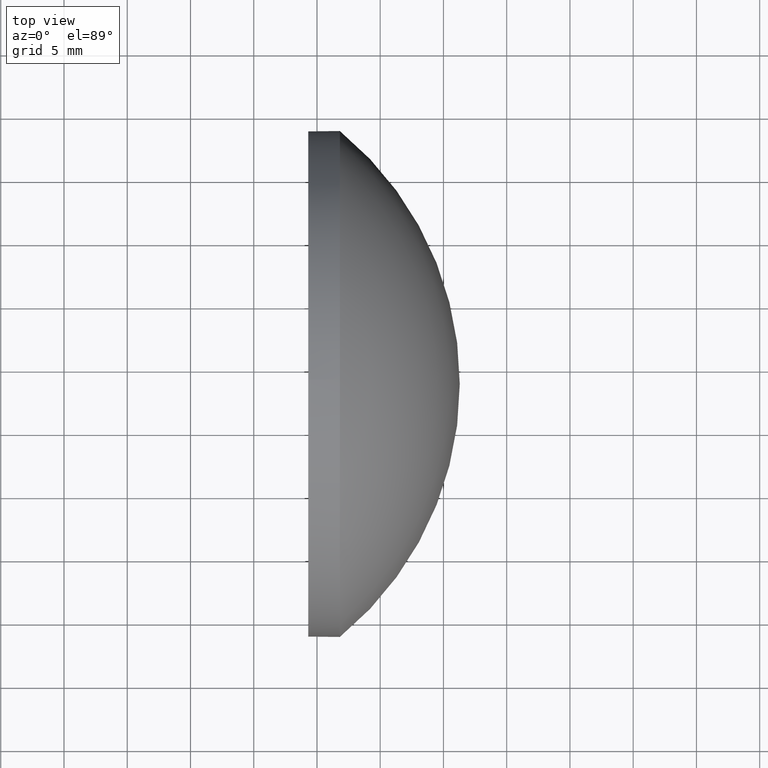
[diagram: clean part render]
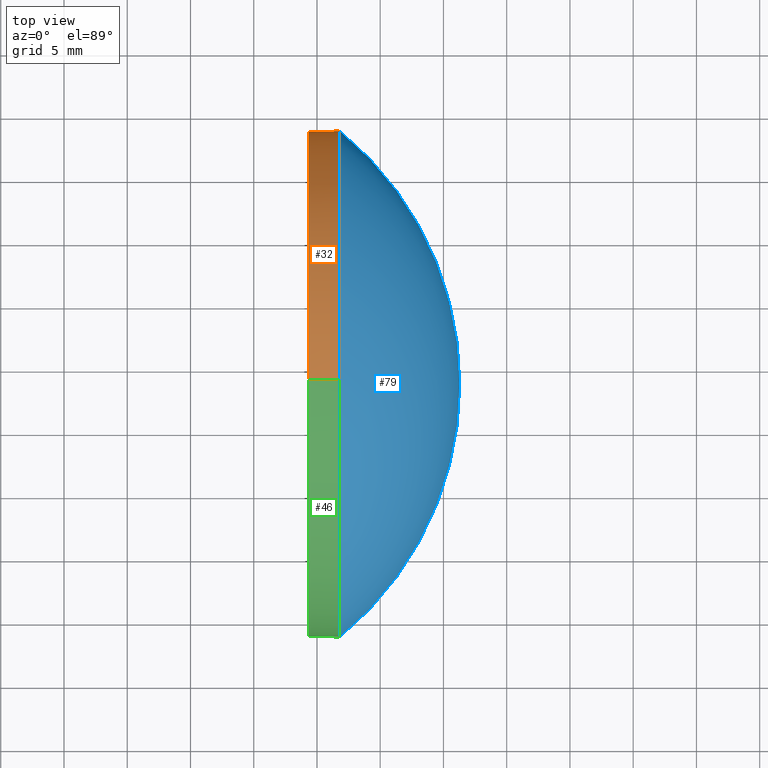
[diagram: same view with three faces highlighted in distinct colors, each labeled with its STEP entity id]
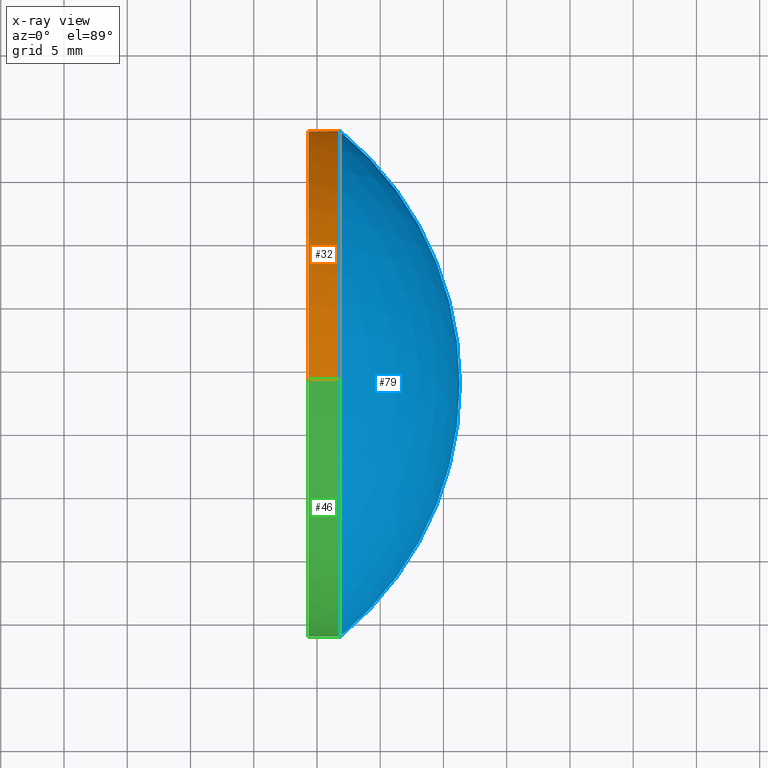
[diagram: x-ray of the same camera — body ghosted, the three highlighted faces saturated]
A machine part, top view with three faces highlighted in distinct colors.
The next image is the same camera in x-ray (body ghosted, the three faces saturated) — at least one of them is partly hidden behind the body in this view.
Their STEP definitions:

[orange] entity #32 — the highlighted cylindrical surface (partial cylindrical patch) has radius 20 mm, axis along (-1, -0, -0).
#1 = LINE ( 'NONE', #100, #52 ) ;
#5 = CIRCLE ( 'NONE', #155, 20.00000000000000400 ) ;
#6 = VERTEX_POINT ( 'NONE', #110 ) ;
#9 = DIRECTION ( 'NONE',  ( -1.000000000000000000, -0.0000000000000000000, -0.0000000000000000000 ) ) ;
#13 = VERTEX_POINT ( 'NONE', #36 ) ;
#19 = ORIENTED_EDGE ( 'NONE', *, *, #64, .T. ) ;
#20 = VERTEX_POINT ( 'NONE', #120 ) ;
#23 = ORIENTED_EDGE ( 'NONE', *, *, #143, .T. ) ;
#25 = ORIENTED_EDGE ( 'NONE', *, *, #119, .F. ) ;
#26 = DIRECTION ( 'NONE',  ( -1.000000000000000000, -0.0000000000000000000, -0.0000000000000000000 ) ) ;
#32 = ADVANCED_FACE ( 'NONE', ( #71 ), #134, .T. ) ;
#33 = VERTEX_POINT ( 'NONE', #67 ) ;
#36 = CARTESIAN_POINT ( 'NONE',  ( 391.8094937531328100, 98.70227120915240000, 20.00000000000000400 ) ) ;
#40 = DIRECTION ( 'NONE',  ( -1.000000000000000000, -0.0000000000000000000, -0.0000000000000000000 ) ) ;
#44 = EDGE_CURVE ( 'NONE', #13, #33, #111, .T. ) ;
#47 = AXIS2_PLACEMENT_3D ( 'NONE', #96, #150, #149 ) ;
#52 = VECTOR ( 'NONE', #170, 1000.000000000000000 ) ;
#64 = EDGE_CURVE ( 'NONE', #6, #20, #137, .T. ) ;
#67 = CARTESIAN_POINT ( 'NONE',  ( 389.3094937531328100, 98.70227120915240000, 20.00000000000000400 ) ) ;
#71 = FACE_OUTER_BOUND ( 'NONE', #163, .T. ) ;
#85 = ORIENTED_EDGE ( 'NONE', *, *, #44, .F. ) ;
#86 = DIRECTION ( 'NONE',  ( -1.000000000000000000, -0.0000000000000000000, -0.0000000000000000000 ) ) ;
#87 = CARTESIAN_POINT ( 'NONE',  ( 389.3094937531328100, 98.70227120915240000, -20.00000000000000400 ) ) ;
#96 = CARTESIAN_POINT ( 'NONE',  ( 379.8029964333595700, 98.70227120915240000, 0.0000000000000000000 ) ) ;
#97 = VECTOR ( 'NONE', #9, 1000.000000000000000 ) ;
#98 = CARTESIAN_POINT ( 'NONE',  ( 389.3094937531328100, 98.70227120915240000, 0.0000000000000000000 ) ) ;
#99 = DIRECTION ( 'NONE',  ( 0.0000000000000000000, 0.0000000000000000000, 1.000000000000000000 ) ) ;
#100 = CARTESIAN_POINT ( 'NONE',  ( 379.8029964333595700, 98.70227120915240000, -20.00000000000000400 ) ) ;
#101 = DIRECTION ( 'NONE',  ( 0.0000000000000000000, 0.0000000000000000000, 1.000000000000000000 ) ) ;
#104 = EDGE_CURVE ( 'NONE', #13, #6, #5, .T. ) ;
#110 = CARTESIAN_POINT ( 'NONE',  ( 391.8094937531328100, 118.7022712091524100, 0.0000000000000000000 ) ) ;
#111 = LINE ( 'NONE', #165, #97 ) ;
#114 = CARTESIAN_POINT ( 'NONE',  ( 391.8094937531328100, 98.70227120915240000, 0.0000000000000000000 ) ) ;
#119 = EDGE_CURVE ( 'NONE', #33, #161, #175, .T. ) ;
#120 = CARTESIAN_POINT ( 'NONE',  ( 391.8094937531328100, 98.70227120915240000, -20.00000000000000400 ) ) ;
#132 = AXIS2_PLACEMENT_3D ( 'NONE', #140, #40, #99 ) ;
#134 = CYLINDRICAL_SURFACE ( 'NONE', #47, 20.00000000000000400 ) ;
#136 = AXIS2_PLACEMENT_3D ( 'NONE', #98, #26, #101 ) ;
#137 = CIRCLE ( 'NONE', #132, 20.00000000000000400 ) ;
#140 = CARTESIAN_POINT ( 'NONE',  ( 391.8094937531328100, 98.70227120915240000, 0.0000000000000000000 ) ) ;
#143 = EDGE_CURVE ( 'NONE', #20, #161, #1, .T. ) ;
#149 = DIRECTION ( 'NONE',  ( 0.0000000000000000000, 0.0000000000000000000, 1.000000000000000000 ) ) ;
#150 = DIRECTION ( 'NONE',  ( -1.000000000000000000, -0.0000000000000000000, -0.0000000000000000000 ) ) ;
#155 = AXIS2_PLACEMENT_3D ( 'NONE', #114, #86, #183 ) ;
#161 = VERTEX_POINT ( 'NONE', #87 ) ;
#163 = EDGE_LOOP ( 'NONE', ( #19, #23, #25, #85, #185 ) ) ;
#165 = CARTESIAN_POINT ( 'NONE',  ( 379.8029964333595700, 98.70227120915240000, 20.00000000000000400 ) ) ;
#170 = DIRECTION ( 'NONE',  ( -1.000000000000000000, -0.0000000000000000000, -0.0000000000000000000 ) ) ;
#175 = CIRCLE ( 'NONE', #136, 20.00000000000000400 ) ;
#183 = DIRECTION ( 'NONE',  ( 0.0000000000000000000, 0.0000000000000000000, 1.000000000000000000 ) ) ;
#185 = ORIENTED_EDGE ( 'NONE', *, *, #104, .T. ) ;

[blue] entity #79 — the highlighted spherical surface has radius 25.837 mm.
#5 = CIRCLE ( 'NONE', #155, 20.00000000000000400 ) ;
#6 = VERTEX_POINT ( 'NONE', #110 ) ;
#13 = VERTEX_POINT ( 'NONE', #36 ) ;
#16 = DIRECTION ( 'NONE',  ( 0.0000000000000000000, 1.224646799147353200E-016, -1.000000000000000000 ) ) ;
#21 = EDGE_CURVE ( 'NONE', #180, #6, #107, .T. ) ;
#29 = ORIENTED_EDGE ( 'NONE', *, *, #104, .F. ) ;
#36 = CARTESIAN_POINT ( 'NONE',  ( 391.8094937531328100, 98.70227120915240000, 20.00000000000000400 ) ) ;
#41 = DIRECTION ( 'NONE',  ( -1.000000000000000000, -0.0000000000000000000, -0.0000000000000000000 ) ) ;
#43 = CIRCLE ( 'NONE', #49, 20.00000000000000400 ) ;
#49 = AXIS2_PLACEMENT_3D ( 'NONE', #113, #41, #154 ) ;
#58 = ORIENTED_EDGE ( 'NONE', *, *, #70, .F. ) ;
#70 = EDGE_CURVE ( 'NONE', #180, #178, #173, .T. ) ;
#72 = DIRECTION ( 'NONE',  ( 0.0000000000000000000, 1.000000000000000000, 0.0000000000000000000 ) ) ;
#79 = ADVANCED_FACE ( 'NONE', ( #146 ), #90, .T. ) ;
#81 = DIRECTION ( 'NONE',  ( 1.000000000000000000, 0.0000000000000000000, 0.0000000000000000000 ) ) ;
#86 = DIRECTION ( 'NONE',  ( -1.000000000000000000, -0.0000000000000000000, -0.0000000000000000000 ) ) ;
#90 = SPHERICAL_SURFACE ( 'NONE', #142, 25.83704641350215100 ) ;
#104 = EDGE_CURVE ( 'NONE', #13, #6, #5, .T. ) ;
#105 = ORIENTED_EDGE ( 'NONE', *, *, #21, .T. ) ;
#106 = AXIS2_PLACEMENT_3D ( 'NONE', #141, #16, #157 ) ;
#107 = CIRCLE ( 'NONE', #117, 25.83704641350215100 ) ;
#110 = CARTESIAN_POINT ( 'NONE',  ( 391.8094937531328100, 118.7022712091524100, 0.0000000000000000000 ) ) ;
#112 = DIRECTION ( 'NONE',  ( -0.0000000000000000000, 0.0000000000000000000, -1.000000000000000000 ) ) ;
#113 = CARTESIAN_POINT ( 'NONE',  ( 391.8094937531328100, 98.70227120915240000, 0.0000000000000000000 ) ) ;
#114 = CARTESIAN_POINT ( 'NONE',  ( 391.8094937531328100, 98.70227120915240000, 0.0000000000000000000 ) ) ;
#117 = AXIS2_PLACEMENT_3D ( 'NONE', #164, #181, #81 ) ;
#125 = EDGE_LOOP ( 'NONE', ( #58, #105, #29, #176 ) ) ;
#126 = CARTESIAN_POINT ( 'NONE',  ( 391.8094937531328100, 78.70227120915238600, -2.449293598294707300E-015 ) ) ;
#129 = EDGE_CURVE ( 'NONE', #178, #13, #43, .T. ) ;
#141 = CARTESIAN_POINT ( 'NONE',  ( 375.4524473396306200, 98.70227120915240000, 0.0000000000000000000 ) ) ;
#142 = AXIS2_PLACEMENT_3D ( 'NONE', #182, #112, #72 ) ;
#146 = FACE_OUTER_BOUND ( 'NONE', #125, .T. ) ;
#152 = CARTESIAN_POINT ( 'NONE',  ( 401.2894937531327700, 98.70227120915240000, 0.0000000000000000000 ) ) ;
#154 = DIRECTION ( 'NONE',  ( 0.0000000000000000000, 0.0000000000000000000, 1.000000000000000000 ) ) ;
#155 = AXIS2_PLACEMENT_3D ( 'NONE', #114, #86, #183 ) ;
#157 = DIRECTION ( 'NONE',  ( 0.0000000000000000000, 1.000000000000000000, 1.224646799147353200E-016 ) ) ;
#164 = CARTESIAN_POINT ( 'NONE',  ( 375.4524473396306200, 98.70227120915240000, 0.0000000000000000000 ) ) ;
#173 = CIRCLE ( 'NONE', #106, 25.83704641350215100 ) ;
#176 = ORIENTED_EDGE ( 'NONE', *, *, #129, .F. ) ;
#178 = VERTEX_POINT ( 'NONE', #126 ) ;
#180 = VERTEX_POINT ( 'NONE', #152 ) ;
#181 = DIRECTION ( 'NONE',  ( -0.0000000000000000000, 0.0000000000000000000, 1.000000000000000000 ) ) ;
#182 = CARTESIAN_POINT ( 'NONE',  ( 375.4524473396306200, 98.70227120915240000, 0.0000000000000000000 ) ) ;
#183 = DIRECTION ( 'NONE',  ( 0.0000000000000000000, 0.0000000000000000000, 1.000000000000000000 ) ) ;

[green] entity #46 — the highlighted cylindrical surface (partial cylindrical patch) has radius 20 mm, axis along (-1, -0, -0).
#1 = LINE ( 'NONE', #100, #52 ) ;
#2 = CIRCLE ( 'NONE', #162, 20.00000000000000400 ) ;
#8 = EDGE_CURVE ( 'NONE', #20, #178, #69, .T. ) ;
#9 = DIRECTION ( 'NONE',  ( -1.000000000000000000, -0.0000000000000000000, -0.0000000000000000000 ) ) ;
#10 = DIRECTION ( 'NONE',  ( 0.0000000000000000000, 0.0000000000000000000, 1.000000000000000000 ) ) ;
#11 = DIRECTION ( 'NONE',  ( -1.000000000000000000, -0.0000000000000000000, -0.0000000000000000000 ) ) ;
#13 = VERTEX_POINT ( 'NONE', #36 ) ;
#20 = VERTEX_POINT ( 'NONE', #120 ) ;
#28 = AXIS2_PLACEMENT_3D ( 'NONE', #94, #139, #82 ) ;
#31 = CARTESIAN_POINT ( 'NONE',  ( 389.3094937531328100, 98.70227120915240000, 0.0000000000000000000 ) ) ;
#33 = VERTEX_POINT ( 'NONE', #67 ) ;
#34 = ORIENTED_EDGE ( 'NONE', *, *, #8, .T. ) ;
#36 = CARTESIAN_POINT ( 'NONE',  ( 391.8094937531328100, 98.70227120915240000, 20.00000000000000400 ) ) ;
#39 = ORIENTED_EDGE ( 'NONE', *, *, #129, .T. ) ;
#41 = DIRECTION ( 'NONE',  ( -1.000000000000000000, -0.0000000000000000000, -0.0000000000000000000 ) ) ;
#43 = CIRCLE ( 'NONE', #49, 20.00000000000000400 ) ;
#44 = EDGE_CURVE ( 'NONE', #13, #33, #111, .T. ) ;
#45 = ORIENTED_EDGE ( 'NONE', *, *, #143, .F. ) ;
#46 = ADVANCED_FACE ( 'NONE', ( #103 ), #68, .T. ) ;
#49 = AXIS2_PLACEMENT_3D ( 'NONE', #113, #41, #154 ) ;
#52 = VECTOR ( 'NONE', #170, 1000.000000000000000 ) ;
#62 = AXIS2_PLACEMENT_3D ( 'NONE', #177, #179, #10 ) ;
#67 = CARTESIAN_POINT ( 'NONE',  ( 389.3094937531328100, 98.70227120915240000, 20.00000000000000400 ) ) ;
#68 = CYLINDRICAL_SURFACE ( 'NONE', #62, 20.00000000000000400 ) ;
#69 = CIRCLE ( 'NONE', #28, 20.00000000000000400 ) ;
#75 = EDGE_LOOP ( 'NONE', ( #45, #34, #39, #148, #145 ) ) ;
#82 = DIRECTION ( 'NONE',  ( 0.0000000000000000000, 0.0000000000000000000, 1.000000000000000000 ) ) ;
#87 = CARTESIAN_POINT ( 'NONE',  ( 389.3094937531328100, 98.70227120915240000, -20.00000000000000400 ) ) ;
#93 = EDGE_CURVE ( 'NONE', #161, #33, #2, .T. ) ;
#94 = CARTESIAN_POINT ( 'NONE',  ( 391.8094937531328100, 98.70227120915240000, 0.0000000000000000000 ) ) ;
#97 = VECTOR ( 'NONE', #9, 1000.000000000000000 ) ;
#100 = CARTESIAN_POINT ( 'NONE',  ( 379.8029964333595700, 98.70227120915240000, -20.00000000000000400 ) ) ;
#103 = FACE_OUTER_BOUND ( 'NONE', #75, .T. ) ;
#111 = LINE ( 'NONE', #165, #97 ) ;
#113 = CARTESIAN_POINT ( 'NONE',  ( 391.8094937531328100, 98.70227120915240000, 0.0000000000000000000 ) ) ;
#120 = CARTESIAN_POINT ( 'NONE',  ( 391.8094937531328100, 98.70227120915240000, -20.00000000000000400 ) ) ;
#126 = CARTESIAN_POINT ( 'NONE',  ( 391.8094937531328100, 78.70227120915238600, -2.449293598294707300E-015 ) ) ;
#129 = EDGE_CURVE ( 'NONE', #178, #13, #43, .T. ) ;
#139 = DIRECTION ( 'NONE',  ( -1.000000000000000000, -0.0000000000000000000, -0.0000000000000000000 ) ) ;
#143 = EDGE_CURVE ( 'NONE', #20, #161, #1, .T. ) ;
#145 = ORIENTED_EDGE ( 'NONE', *, *, #93, .F. ) ;
#148 = ORIENTED_EDGE ( 'NONE', *, *, #44, .T. ) ;
#154 = DIRECTION ( 'NONE',  ( 0.0000000000000000000, 0.0000000000000000000, 1.000000000000000000 ) ) ;
#161 = VERTEX_POINT ( 'NONE', #87 ) ;
#162 = AXIS2_PLACEMENT_3D ( 'NONE', #31, #11, #169 ) ;
#165 = CARTESIAN_POINT ( 'NONE',  ( 379.8029964333595700, 98.70227120915240000, 20.00000000000000400 ) ) ;
#169 = DIRECTION ( 'NONE',  ( 0.0000000000000000000, 0.0000000000000000000, 1.000000000000000000 ) ) ;
#170 = DIRECTION ( 'NONE',  ( -1.000000000000000000, -0.0000000000000000000, -0.0000000000000000000 ) ) ;
#177 = CARTESIAN_POINT ( 'NONE',  ( 379.8029964333595700, 98.70227120915240000, 0.0000000000000000000 ) ) ;
#178 = VERTEX_POINT ( 'NONE', #126 ) ;
#179 = DIRECTION ( 'NONE',  ( -1.000000000000000000, -0.0000000000000000000, -0.0000000000000000000 ) ) ;